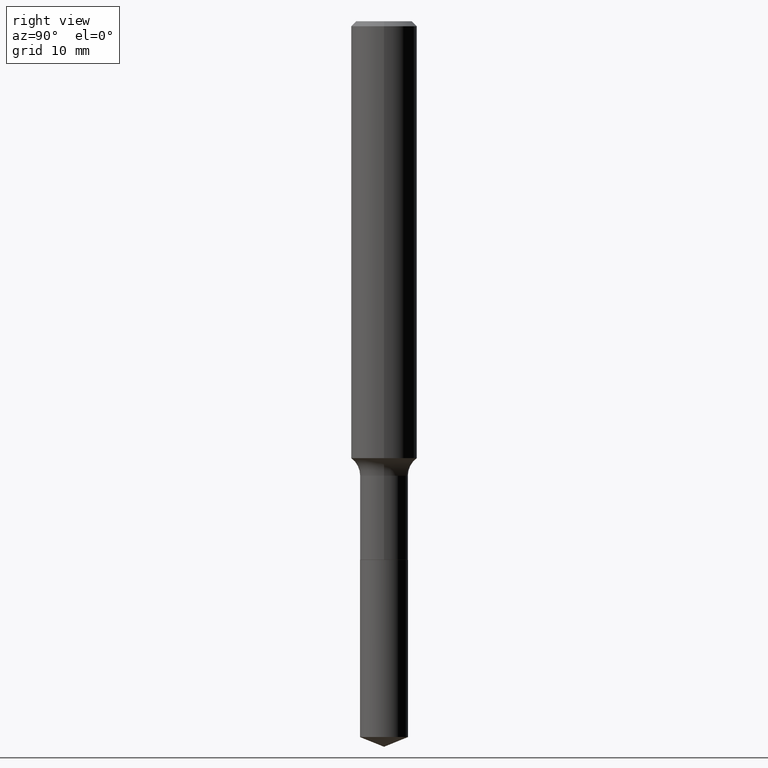
[diagram: clean part render]
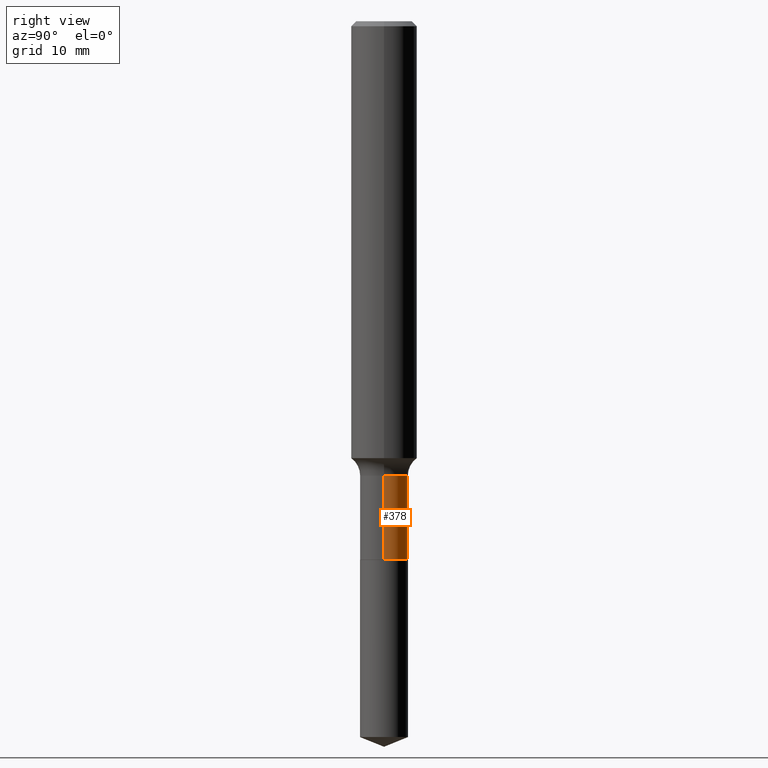
[diagram: same view with one face highlighted and labeled with its STEP entity id]
A machine part, right view. The second image highlights one B-rep face of the part: STEP entity #378.
In plain terms, the highlighted cylindrical surface (edge-blend (fillet) strip) has radius 2.1831 mm, axis along (-0, 0, 1).
Its self-contained STEP definition (entity closure, byte-faithful):
#11 = CARTESIAN_POINT ( 'NONE',  ( 0.08594999999999998475, -7.333856552240024427E-15, -1.928600000000000092 ) ) ;
#47 = EDGE_CURVE ( 'NONE', #173, #322, #481, .T. ) ;
#56 = VERTEX_POINT ( 'NONE', #225 ) ;
#59 = AXIS2_PLACEMENT_3D ( 'NONE', #211, #277, #426 ) ;
#76 = EDGE_CURVE ( 'NONE', #284, #56, #421, .T. ) ;
#82 = DIRECTION ( 'NONE',  ( -2.445468806185136877E-29, 3.491481338843145188E-15, 1.000000000000000000 ) ) ;
#96 = VECTOR ( 'NONE', #82, 39.37007874015748143 ) ;
#108 = DIRECTION ( 'NONE',  ( 1.000000000000000000, -6.982962677686261977E-15, 0.000000000000000000 ) ) ;
#120 = VECTOR ( 'NONE', #142, 39.37007874015748143 ) ;
#125 = ORIENTED_EDGE ( 'NONE', *, *, #143, .T. ) ;
#142 = DIRECTION ( 'NONE',  ( -2.445468806185136877E-29, 3.491481338843145188E-15, 1.000000000000000000 ) ) ;
#143 = EDGE_CURVE ( 'NONE', #284, #173, #375, .T. ) ;
#150 = DIRECTION ( 'NONE',  ( -2.445468806185136597E-29, 3.491481338843145583E-15, 1.000000000000000000 ) ) ;
#155 = CYLINDRICAL_SURFACE ( 'NONE', #59, 0.08594999999999997087 ) ;
#157 = CARTESIAN_POINT ( 'NONE',  ( -0.08594999999999998475, -5.597666061278133758E-15, -1.928600000000000092 ) ) ;
#168 = AXIS2_PLACEMENT_3D ( 'NONE', #377, #150, #108 ) ;
#173 = VERTEX_POINT ( 'NONE', #157 ) ;
#187 = CARTESIAN_POINT ( 'NONE',  ( -0.08594999999999997087, 6.107114813858059028E-16, -4.227824710074090189E-30 ) ) ;
#189 = DIRECTION ( 'NONE',  ( -2.445468806185136597E-29, 3.491481338843145583E-15, 1.000000000000000000 ) ) ;
#211 = CARTESIAN_POINT ( 'NONE',  ( 0.000000000000000000, 0.000000000000000000, 0.000000000000000000 ) ) ;
#225 = CARTESIAN_POINT ( 'NONE',  ( 0.08594999999999995699, -6.283269817382120980E-15, -1.627699999999999703 ) ) ;
#259 = DIRECTION ( 'NONE',  ( 1.000000000000000000, -6.982962677686264344E-15, 0.000000000000000000 ) ) ;
#277 = DIRECTION ( 'NONE',  ( -2.445468806185136597E-29, 3.491481338843145583E-15, 1.000000000000000000 ) ) ;
#279 = CIRCLE ( 'NONE', #309, 0.08594999999999995699 ) ;
#284 = VERTEX_POINT ( 'NONE', #11 ) ;
#304 = FACE_OUTER_BOUND ( 'NONE', #402, .T. ) ;
#309 = AXIS2_PLACEMENT_3D ( 'NONE', #439, #189, #259 ) ;
#322 = VERTEX_POINT ( 'NONE', #453 ) ;
#330 = EDGE_CURVE ( 'NONE', #56, #322, #279, .T. ) ;
#355 = ORIENTED_EDGE ( 'NONE', *, *, #76, .F. ) ;
#363 = ORIENTED_EDGE ( 'NONE', *, *, #47, .T. ) ;
#375 = CIRCLE ( 'NONE', #168, 0.08594999999999998475 ) ;
#377 = CARTESIAN_POINT ( 'NONE',  ( 4.716331139608654438E-29, -6.733670910092890989E-15, -1.928600000000000092 ) ) ;
#378 = ADVANCED_FACE ( 'NONE', ( #304 ), #155, .T. ) ;
#402 = EDGE_LOOP ( 'NONE', ( #125, #363, #473, #355 ) ) ;
#421 = LINE ( 'NONE', #452, #96 ) ;
#426 = DIRECTION ( 'NONE',  ( 1.000000000000000000, -6.982962677686266711E-15, 4.876176775795936353E-29 ) ) ;
#439 = CARTESIAN_POINT ( 'NONE',  ( 3.980489575827546304E-29, -5.683084175234986754E-15, -1.627699999999999703 ) ) ;
#452 = CARTESIAN_POINT ( 'NONE',  ( 0.08594999999999997087, -6.001856421471344234E-16, 4.191073938796605839E-30 ) ) ;
#453 = CARTESIAN_POINT ( 'NONE',  ( -0.08594999999999995699, -5.597666061278133758E-15, -1.627699999999999703 ) ) ;
#473 = ORIENTED_EDGE ( 'NONE', *, *, #330, .F. ) ;
#481 = LINE ( 'NONE', #187, #120 ) ;